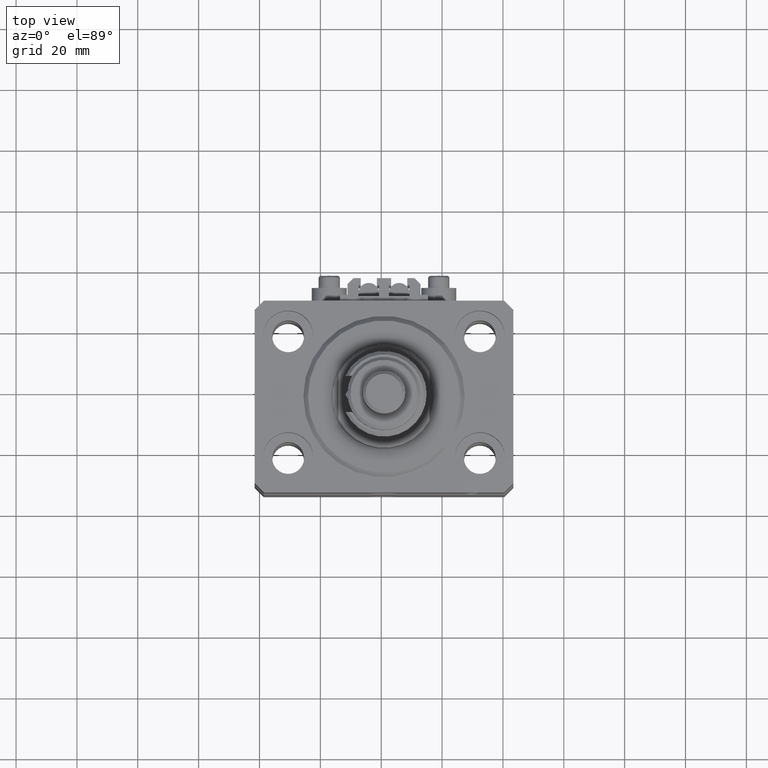
[diagram: clean part render]
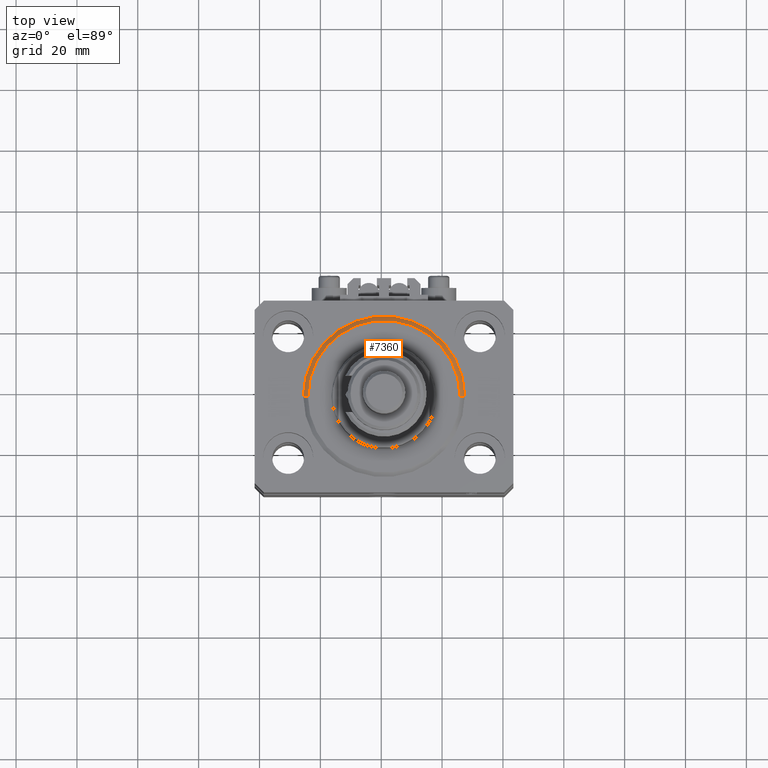
[diagram: same view with one face highlighted and labeled with its STEP entity id]
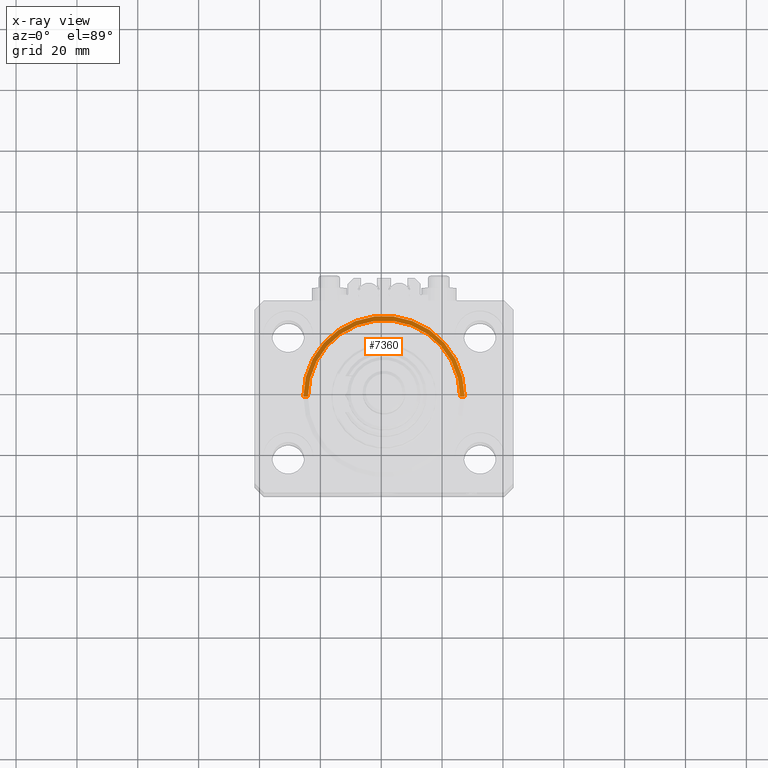
[diagram: x-ray of the same camera — body ghosted, the highlighted face saturated]
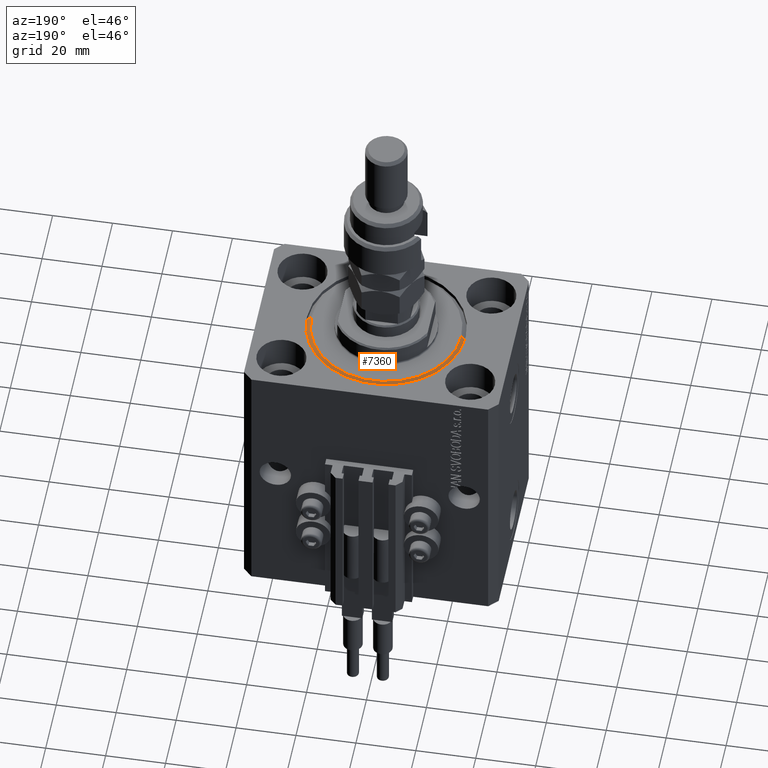
[diagram: same view with one face highlighted and labeled with its STEP entity id]
A machine part, top view. The second image highlights one B-rep face of the part: STEP entity #7360.
The next image is the same camera in x-ray: the body ghosted, the highlighted face saturated — about 0% of this face is hidden behind the body in this view.
A second angle (auxiliary view) of the same face is appended — the face is thin or edge-on in the first view.
In plain terms, the highlighted conical surface has half-angle 45 deg.
Its self-contained STEP definition (entity closure, byte-faithful):
#657 = DIRECTION ( 'NONE',  ( 1.000000000000000000, 0.000000000000000000, 0.000000000000000000 ) ) ;
#834 = LINE ( 'NONE', #8369, #16782 ) ;
#839 = VERTEX_POINT ( 'NONE', #34987 ) ;
#1358 = CIRCLE ( 'NONE', #26998, 26.50000000000000355 ) ;
#5068 = CARTESIAN_POINT ( 'NONE',  ( 0.000000000000000000, 0.000000000000000000, 1.500000000000018652 ) ) ;
#7360 = ADVANCED_FACE ( 'NONE', ( #48294 ), #49621, .T. ) ;
#8293 = AXIS2_PLACEMENT_3D ( 'NONE', #5068, #25529, #657 ) ;
#8369 = CARTESIAN_POINT ( 'NONE',  ( -26.50000000000000355, 3.245314017740486554E-15, 1.500000000000018652 ) ) ;
#10550 = CARTESIAN_POINT ( 'NONE',  ( -26.50000000000000355, 0.000000000000000000, 1.500000000000018652 ) ) ;
#10991 = DIRECTION ( 'NONE',  ( -0.000000000000000000, -0.000000000000000000, 1.000000000000000000 ) ) ;
#12778 = DIRECTION ( 'NONE',  ( -0.000000000000000000, -0.000000000000000000, -1.000000000000000000 ) ) ;
#13025 = ORIENTED_EDGE ( 'NONE', *, *, #32879, .F. ) ;
#13266 = EDGE_CURVE ( 'NONE', #40074, #16995, #834, .T. ) ;
#13565 = DIRECTION ( 'NONE',  ( 1.000000000000000000, 0.000000000000000000, 0.000000000000000000 ) ) ;
#15089 = DIRECTION ( 'NONE',  ( 0.7071067811865483499, 0.000000000000000000, 0.7071067811865466846 ) ) ;
#16642 = DIRECTION ( 'NONE',  ( -0.7071067811865483499, 8.659560562354942719E-17, 0.7071067811865466846 ) ) ;
#16658 = CARTESIAN_POINT ( 'NONE',  ( 0.000000000000000000, 0.000000000000000000, 0.000000000000000000 ) ) ;
#16782 = VECTOR ( 'NONE', #16642, 1000.000000000000000 ) ;
#16995 = VERTEX_POINT ( 'NONE', #10550 ) ;
#18512 = CARTESIAN_POINT ( 'NONE',  ( 0.000000000000000000, 0.000000000000000000, 1.500000000000018652 ) ) ;
#21700 = EDGE_LOOP ( 'NONE', ( #36652, #50284, #29854, #13025 ) ) ;
#25529 = DIRECTION ( 'NONE',  ( -0.000000000000000000, -0.000000000000000000, 1.000000000000000000 ) ) ;
#26570 = CIRCLE ( 'NONE', #44711, 24.99999999999998224 ) ;
#26998 = AXIS2_PLACEMENT_3D ( 'NONE', #18512, #10991, #34284 ) ;
#29738 = EDGE_CURVE ( 'NONE', #40074, #839, #26570, .T. ) ;
#29854 = ORIENTED_EDGE ( 'NONE', *, *, #44161, .F. ) ;
#30081 = CARTESIAN_POINT ( 'NONE',  ( -24.99999999999998224, 3.153465507804433615E-15, 0.000000000000000000 ) ) ;
#31649 = VECTOR ( 'NONE', #15089, 1000.000000000000000 ) ;
#32879 = EDGE_CURVE ( 'NONE', #839, #48804, #42525, .T. ) ;
#34284 = DIRECTION ( 'NONE',  ( 1.000000000000000000, 0.000000000000000000, 0.000000000000000000 ) ) ;
#34987 = CARTESIAN_POINT ( 'NONE',  ( 24.99999999999998224, 0.000000000000000000, 0.000000000000000000 ) ) ;
#36652 = ORIENTED_EDGE ( 'NONE', *, *, #29738, .F. ) ;
#38894 = CARTESIAN_POINT ( 'NONE',  ( 26.50000000000000355, 0.000000000000000000, 1.500000000000018652 ) ) ;
#40074 = VERTEX_POINT ( 'NONE', #30081 ) ;
#42525 = LINE ( 'NONE', #38894, #31649 ) ;
#42757 = CARTESIAN_POINT ( 'NONE',  ( 26.50000000000000355, 3.245314017740486554E-15, 1.500000000000018652 ) ) ;
#44161 = EDGE_CURVE ( 'NONE', #48804, #16995, #1358, .T. ) ;
#44711 = AXIS2_PLACEMENT_3D ( 'NONE', #16658, #12778, #13565 ) ;
#48294 = FACE_OUTER_BOUND ( 'NONE', #21700, .T. ) ;
#48804 = VERTEX_POINT ( 'NONE', #42757 ) ;
#49621 = CONICAL_SURFACE ( 'NONE', #8293, 26.50000000000000355, 0.7853981633974495002 ) ;
#50284 = ORIENTED_EDGE ( 'NONE', *, *, #13266, .T. ) ;